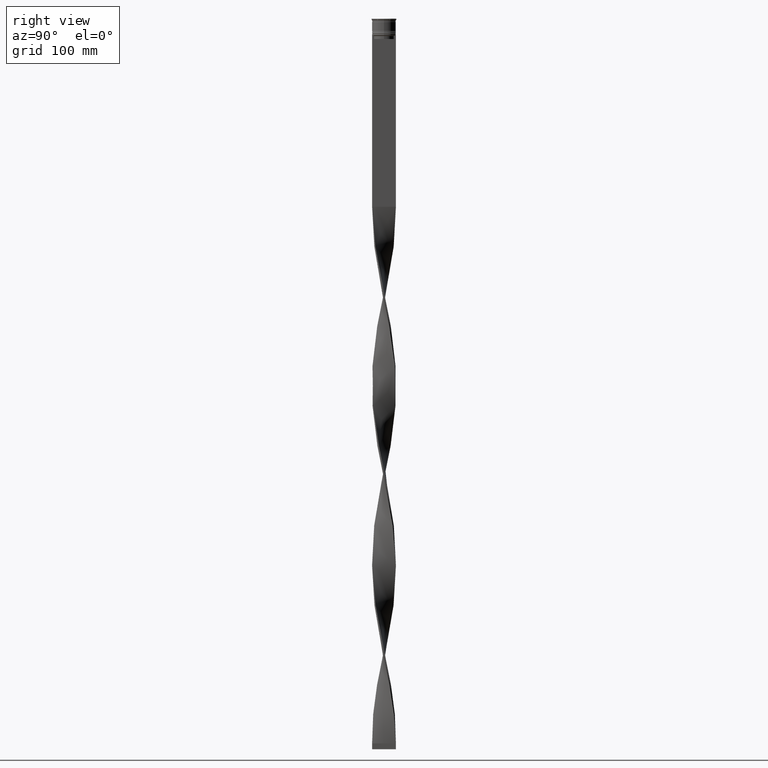
[diagram: clean part render]
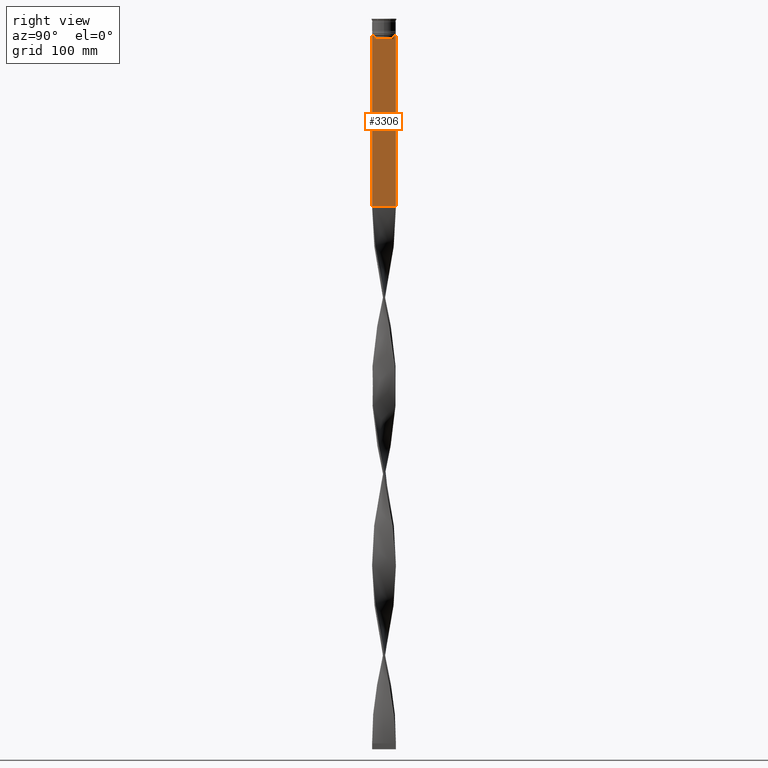
[diagram: same view with one face highlighted and labeled with its STEP entity id]
A machine part, right view. The second image highlights one B-rep face of the part: STEP entity #3306.
In plain terms, the highlighted planar face has unit normal (-1, 0, 0).
Its self-contained STEP definition (entity closure, byte-faithful):
#13 = LINE ( 'NONE', #2116, #172 ) ;
#20 = VECTOR ( 'NONE', #87, 1000.000000000000000 ) ;
#40 = VERTEX_POINT ( 'NONE', #2340 ) ;
#41 = CARTESIAN_POINT ( 'NONE',  ( 0.7500000000000001110, -10.00000000000000533, -14.00000000000000178 ) ) ;
#82 = DIRECTION ( 'NONE',  ( -0.000000000000000000, -0.000000000000000000, 1.000000000000000000 ) ) ;
#87 = DIRECTION ( 'NONE',  ( 0.000000000000000000, -1.000000000000000000, 0.000000000000000000 ) ) ;
#135 = ORIENTED_EDGE ( 'NONE', *, *, #2690, .T. ) ;
#155 = B_SPLINE_CURVE_WITH_KNOTS ( 'NONE', 3,
 ( #4176, #2064, #1396, #1046 ),
 .UNSPECIFIED., .F., .F.,
 ( 4, 4 ),
 ( 0.03866293624047253963, 0.03937282246709320616 ),
 .UNSPECIFIED. ) ;
#172 = VECTOR ( 'NONE', #690, 1000.000000000000000 ) ;
#224 = VERTEX_POINT ( 'NONE', #1060 ) ;
#359 = CARTESIAN_POINT ( 'NONE',  ( 0.7500000000000001110, 9.999999999999998224, 6.056171120131581098 ) ) ;
#404 = CARTESIAN_POINT ( 'NONE',  ( 0.7500000000000001110, 8.701063075415250481, -14.16668448247791545 ) ) ;
#416 = LINE ( 'NONE', #41, #4146 ) ;
#436 = LINE ( 'NONE', #3246, #20 ) ;
#474 = AXIS2_PLACEMENT_3D ( 'NONE', #3858, #3209, #3937 ) ;
#509 = ORIENTED_EDGE ( 'NONE', *, *, #3365, .T. ) ;
#518 = ORIENTED_EDGE ( 'NONE', *, *, #4552, .F. ) ;
#553 = EDGE_CURVE ( 'NONE', #1153, #2829, #3804, .T. ) ;
#678 = EDGE_CURVE ( 'NONE', #224, #1636, #2408, .T. ) ;
#690 = DIRECTION ( 'NONE',  ( 0.000000000000000000, -1.000000000000000000, 0.000000000000000000 ) ) ;
#714 = PLANE ( 'NONE',  #474 ) ;
#854 = ORIENTED_EDGE ( 'NONE', *, *, #4208, .T. ) ;
#869 = ORIENTED_EDGE ( 'NONE', *, *, #553, .T. ) ;
#898 = VECTOR ( 'NONE', #82, 1000.000000000000000 ) ;
#1046 = CARTESIAN_POINT ( 'NONE',  ( 0.7500000000000001110, -8.868342573446296839, -14.00000000000000178 ) ) ;
#1060 = CARTESIAN_POINT ( 'NONE',  ( 0.7500000000000001110, 9.871550030263739117, -14.00000000000000178 ) ) ;
#1078 = EDGE_CURVE ( 'NONE', #4128, #2039, #3309, .T. ) ;
#1130 = B_SPLINE_CURVE_WITH_KNOTS ( 'NONE', 3,
 ( #3494, #404, #3616, #2499 ),
 .UNSPECIFIED., .F., .F.,
 ( 4, 4 ),
 ( 0.01512225952876174867, 0.01583070519299695222 ),
 .UNSPECIFIED. ) ;
#1153 = VERTEX_POINT ( 'NONE', #2557 ) ;
#1167 = EDGE_LOOP ( 'NONE', ( #1729, #854, #869, #2068, #2698, #3752, #2324, #135, #3917, #509, #518, #4526 ) ) ;
#1220 = CARTESIAN_POINT ( 'NONE',  ( 0.7500000000000001110, -8.366450860430608927, 0.000000000000000000 ) ) ;
#1258 = CARTESIAN_POINT ( 'NONE',  ( 0.7500000000000001110, -10.00000000000000533, -14.00000000000000178 ) ) ;
#1266 = VECTOR ( 'NONE', #4173, 1000.000000000000000 ) ;
#1290 = CARTESIAN_POINT ( 'NONE',  ( 0.7500000000000001110, -10.00000000000000533, -14.00000000000000178 ) ) ;
#1360 = VERTEX_POINT ( 'NONE', #3800 ) ;
#1396 = CARTESIAN_POINT ( 'NONE',  ( 0.7500000000000001110, -8.701063080777121428, -14.16668447713511725 ) ) ;
#1429 = DIRECTION ( 'NONE',  ( 0.000000000000000000, -1.000000000000000000, 0.000000000000000000 ) ) ;
#1466 = VERTEX_POINT ( 'NONE', #2152 ) ;
#1482 = DIRECTION ( 'NONE',  ( 0.000000000000000000, 1.000000000000000000, 0.000000000000000000 ) ) ;
#1523 = CARTESIAN_POINT ( 'NONE',  ( 0.7500000000000001110, -10.00000000000000533, 6.056171120131581098 ) ) ;
#1636 = VERTEX_POINT ( 'NONE', #3188 ) ;
#1685 = VERTEX_POINT ( 'NONE', #2953 ) ;
#1715 = VECTOR ( 'NONE', #1855, 1000.000000000000000 ) ;
#1729 = ORIENTED_EDGE ( 'NONE', *, *, #678, .T. ) ;
#1832 = VERTEX_POINT ( 'NONE', #3144 ) ;
#1855 = DIRECTION ( 'NONE',  ( 0.000000000000000000, 0.000000000000000000, -1.000000000000000000 ) ) ;
#1957 = EDGE_CURVE ( 'NONE', #2039, #1832, #155, .T. ) ;
#2039 = VERTEX_POINT ( 'NONE', #4291 ) ;
#2064 = CARTESIAN_POINT ( 'NONE',  ( 0.7500000000000001110, -8.533766903463440912, -14.33335220807192023 ) ) ;
#2068 = ORIENTED_EDGE ( 'NONE', *, *, #3733, .T. ) ;
#2116 = CARTESIAN_POINT ( 'NONE',  ( 0.7500000000000001110, -10.00000000000000533, -14.00000000000000178 ) ) ;
#2152 = CARTESIAN_POINT ( 'NONE',  ( 0.7500000000000001110, 9.999999999999998224, -14.00000000000000178 ) ) ;
#2180 = LINE ( 'NONE', #2863, #3267 ) ;
#2195 = EDGE_CURVE ( 'NONE', #1466, #224, #2658, .T. ) ;
#2216 = VERTEX_POINT ( 'NONE', #4394 ) ;
#2324 = ORIENTED_EDGE ( 'NONE', *, *, #2822, .T. ) ;
#2340 = CARTESIAN_POINT ( 'NONE',  ( 0.7500000000000001110, -10.00000000000000533, -14.00000000000000178 ) ) ;
#2408 = LINE ( 'NONE', #1290, #1266 ) ;
#2465 = FACE_OUTER_BOUND ( 'NONE', #1167, .T. ) ;
#2499 = CARTESIAN_POINT ( 'NONE',  ( 0.7500000000000001110, 8.366450860430608927, -14.50000000000000000 ) ) ;
#2557 = CARTESIAN_POINT ( 'NONE',  ( 0.7500000000000001110, 8.366450860430608927, -14.50000000000000000 ) ) ;
#2658 = LINE ( 'NONE', #1258, #3033 ) ;
#2690 = EDGE_CURVE ( 'NONE', #2216, #40, #416, .T. ) ;
#2698 = ORIENTED_EDGE ( 'NONE', *, *, #1078, .T. ) ;
#2822 = EDGE_CURVE ( 'NONE', #1832, #2216, #13, .T. ) ;
#2829 = VERTEX_POINT ( 'NONE', #2878 ) ;
#2863 = CARTESIAN_POINT ( 'NONE',  ( 0.7500000000000001110, -10.00000000000000533, -157.9999999999999716 ) ) ;
#2878 = CARTESIAN_POINT ( 'NONE',  ( 0.7500000000000001110, 8.366450860430608927, -17.00000000000000000 ) ) ;
#2953 = CARTESIAN_POINT ( 'NONE',  ( 0.7500000000000002220, 9.999999999999998224, -157.9999999999999716 ) ) ;
#3016 = EDGE_CURVE ( 'NONE', #40, #1360, #4409, .T. ) ;
#3033 = VECTOR ( 'NONE', #4073, 1000.000000000000000 ) ;
#3144 = CARTESIAN_POINT ( 'NONE',  ( 0.7500000000000001110, -8.868342573446296839, -14.00000000000000178 ) ) ;
#3188 = CARTESIAN_POINT ( 'NONE',  ( 0.7500000000000001110, 8.868342573446296839, -14.00000000000000178 ) ) ;
#3209 = DIRECTION ( 'NONE',  ( -1.000000000000000000, 0.000000000000000000, 0.000000000000000000 ) ) ;
#3246 = CARTESIAN_POINT ( 'NONE',  ( 0.7500000000000001110, 8.400000000000003908, -17.00000000000000000 ) ) ;
#3267 = VECTOR ( 'NONE', #1482, 1000.000000000000000 ) ;
#3306 = ADVANCED_FACE ( 'NONE', ( #2465 ), #714, .F. ) ;
#3309 = LINE ( 'NONE', #1220, #898 ) ;
#3365 = EDGE_CURVE ( 'NONE', #1360, #1685, #2180, .T. ) ;
#3464 = VECTOR ( 'NONE', #4453, 1000.000000000000000 ) ;
#3469 = CARTESIAN_POINT ( 'NONE',  ( 0.7500000000000001110, 8.366450860430608927, 0.000000000000000000 ) ) ;
#3494 = CARTESIAN_POINT ( 'NONE',  ( 0.7500000000000001110, 8.868342573446296839, -14.00000000000000178 ) ) ;
#3604 = LINE ( 'NONE', #359, #1715 ) ;
#3616 = CARTESIAN_POINT ( 'NONE',  ( 0.7500000000000001110, 8.533766897779925031, -14.33335221373273605 ) ) ;
#3733 = EDGE_CURVE ( 'NONE', #2829, #4128, #436, .T. ) ;
#3752 = ORIENTED_EDGE ( 'NONE', *, *, #1957, .T. ) ;
#3800 = CARTESIAN_POINT ( 'NONE',  ( 0.7500000000000001110, -10.00000000000000533, -157.9999999999999716 ) ) ;
#3804 = LINE ( 'NONE', #3469, #3464 ) ;
#3858 = CARTESIAN_POINT ( 'NONE',  ( 0.7500000000000001110, -10.00000000000000533, 6.056171120131581098 ) ) ;
#3917 = ORIENTED_EDGE ( 'NONE', *, *, #3016, .T. ) ;
#3937 = DIRECTION ( 'NONE',  ( 0.000000000000000000, 0.000000000000000000, 1.000000000000000000 ) ) ;
#4073 = DIRECTION ( 'NONE',  ( 0.000000000000000000, -1.000000000000000000, 0.000000000000000000 ) ) ;
#4128 = VERTEX_POINT ( 'NONE', #4538 ) ;
#4146 = VECTOR ( 'NONE', #1429, 1000.000000000000000 ) ;
#4173 = DIRECTION ( 'NONE',  ( 0.000000000000000000, -1.000000000000000000, 0.000000000000000000 ) ) ;
#4176 = CARTESIAN_POINT ( 'NONE',  ( 0.7500000000000001110, -8.366450860430608927, -14.50000000000000000 ) ) ;
#4208 = EDGE_CURVE ( 'NONE', #1636, #1153, #1130, .T. ) ;
#4291 = CARTESIAN_POINT ( 'NONE',  ( 0.7500000000000001110, -8.366450860430608927, -14.50000000000000000 ) ) ;
#4321 = DIRECTION ( 'NONE',  ( 0.000000000000000000, 0.000000000000000000, -1.000000000000000000 ) ) ;
#4394 = CARTESIAN_POINT ( 'NONE',  ( 0.7500000000000001110, -9.871550030263739117, -14.00000000000000178 ) ) ;
#4409 = LINE ( 'NONE', #1523, #4450 ) ;
#4450 = VECTOR ( 'NONE', #4321, 1000.000000000000000 ) ;
#4453 = DIRECTION ( 'NONE',  ( 0.000000000000000000, 0.000000000000000000, -1.000000000000000000 ) ) ;
#4526 = ORIENTED_EDGE ( 'NONE', *, *, #2195, .T. ) ;
#4538 = CARTESIAN_POINT ( 'NONE',  ( 0.7500000000000001110, -8.366450860430608927, -17.00000000000000000 ) ) ;
#4552 = EDGE_CURVE ( 'NONE', #1466, #1685, #3604, .T. ) ;